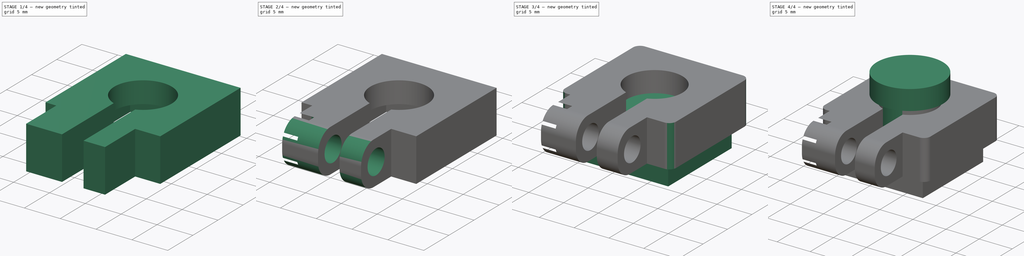
[diagram: build sequence overview — one tinted view per stage of 4, left to right]
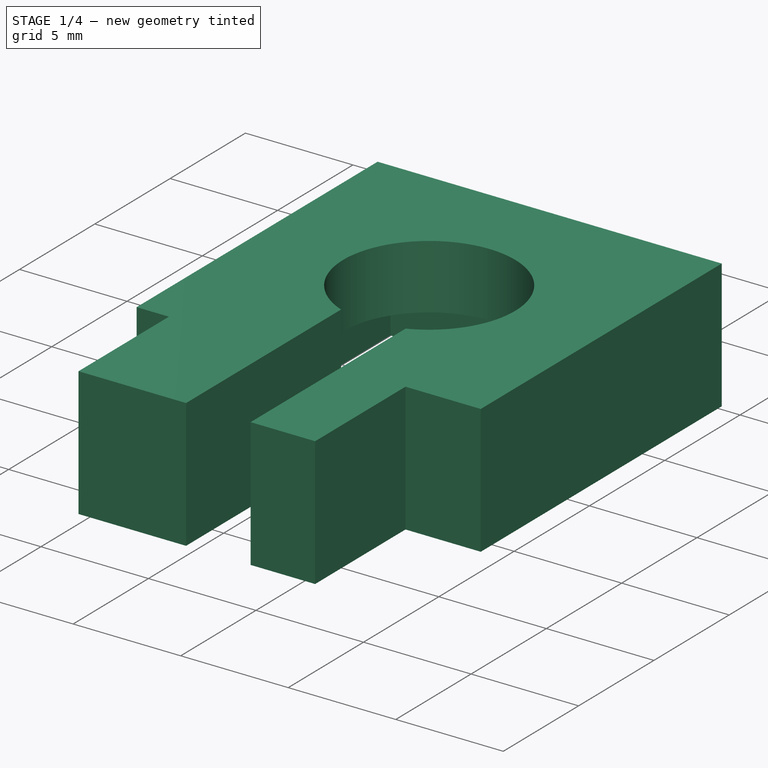
[diagram: stage 1 of 4 — iso view after this stage's code; geometry added in this stage tinted green]
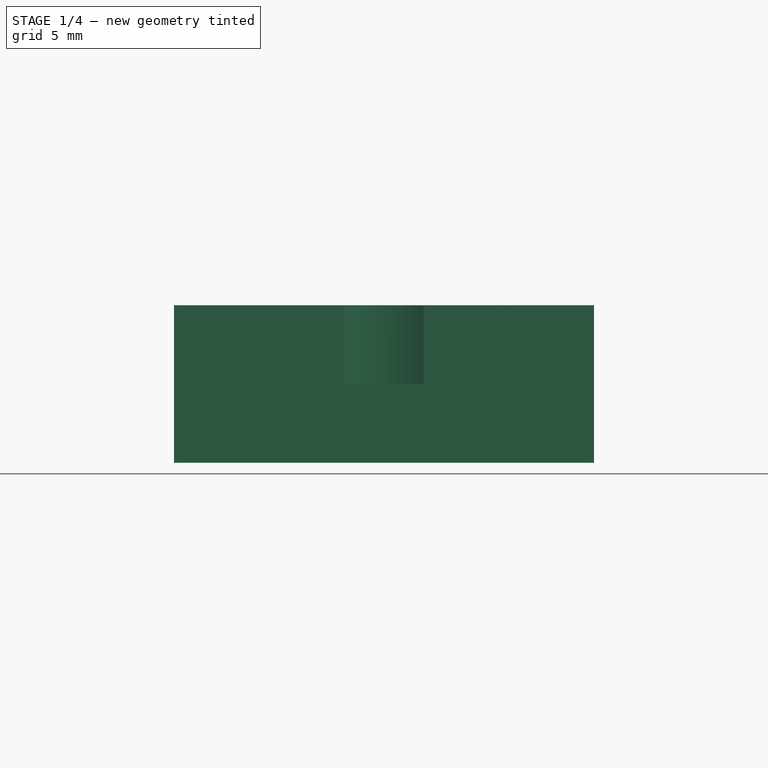
[diagram: stage 1 of 4 — front view after this stage's code; geometry added in this stage tinted green]
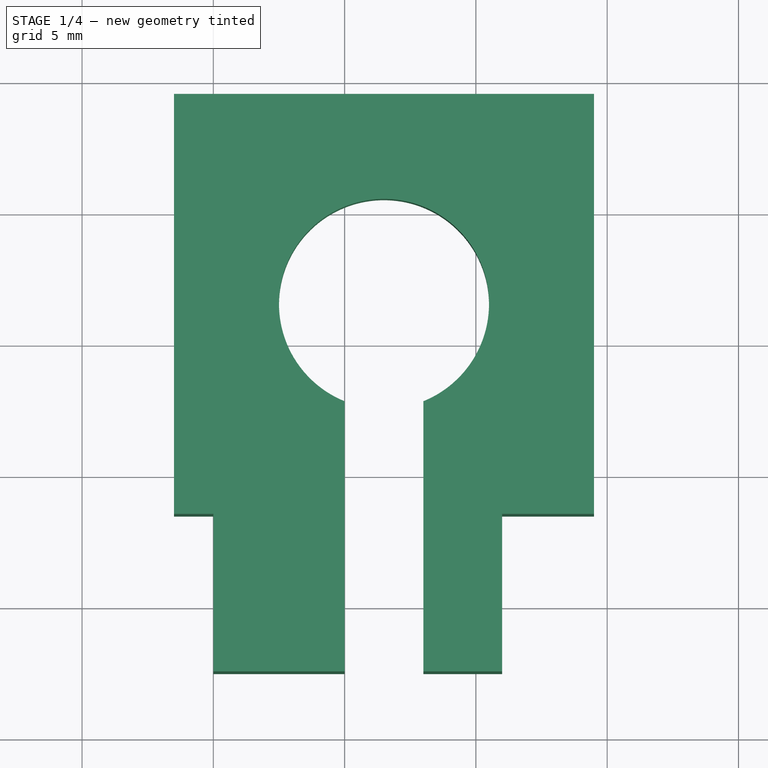
[diagram: stage 1 of 4 — top view after this stage's code; geometry added in this stage tinted green]
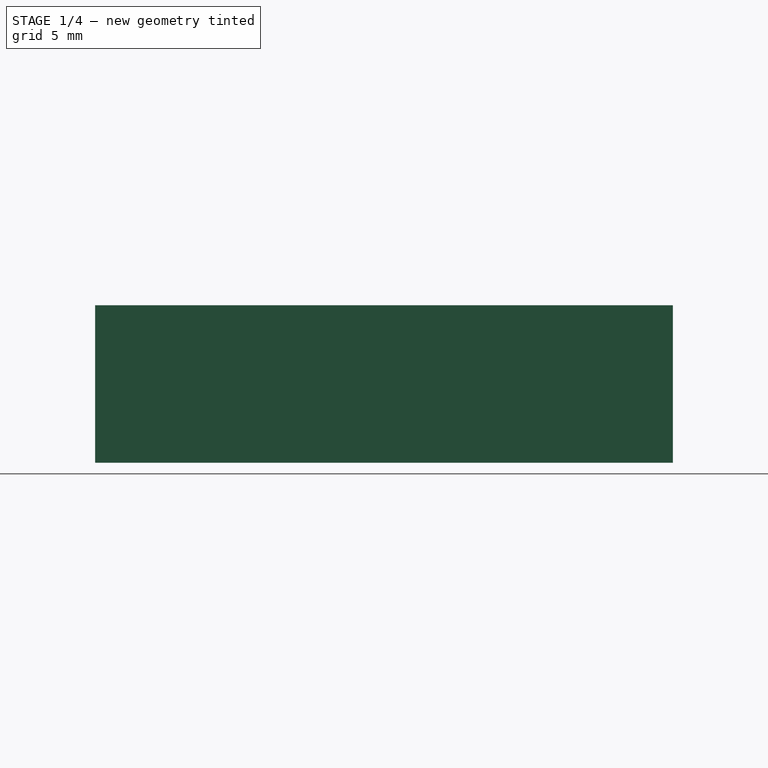
[diagram: stage 1 of 4 — right view after this stage's code; geometry added in this stage tinted green]
FCSTD DOCUMENT  (FreeCAD 0.16R6700 (Git))
Label: camera
License: All rights reserved
LicenseURL: http://en.wikipedia.org/wiki/All_rights_reserved
objects: Sketcher::SketchObject×7, PartDesign::Pad×5, PartDesign::Pocket×2, PartDesign::Fillet×2, Part::Box×1
note: 24 computed .brp shape members not serialized (recipe doc carries the construction recipe); baked Part::Feature solids carry a one-line shape summary decoded from their .brp

FEATURE [Sketcher::SketchObject] Sketch003
  Placement = pos=(0,0,3) rot=(0,0,1;0rad)
  sketch-geometry (19):
    g0: LineSegment StartX=0.5 StartY=12.5 StartZ=0 EndX=12.5 EndY=12.5 EndZ=0
    g1: LineSegment StartX=12.5 StartY=12.5 StartZ=0 EndX=12.5 EndY=0.5 EndZ=0
    g2: LineSegment StartX=12.5 StartY=0.5 StartZ=0 EndX=8 EndY=0.5 EndZ=0
    g3: LineSegment StartX=0.5 StartY=0.5 StartZ=0 EndX=0.5 EndY=12.5 EndZ=0
    g4: LineSegment StartX=-1.5 StartY=14.5 StartZ=0 EndX=14.5 EndY=14.5 EndZ=0
    g5: LineSegment StartX=14.5 StartY=14.5 StartZ=0 EndX=14.5 EndY=-1.5 EndZ=0
    g6: LineSegment StartX=14.5 StartY=-1.5 StartZ=0 EndX=11 EndY=-1.5 EndZ=0
    g7: LineSegment StartX=-1.5 StartY=-1.5 StartZ=0 EndX=-1.5 EndY=14.5 EndZ=0
    g8: LineSegment StartX=5 StartY=0.5 StartZ=0 EndX=5 EndY=-7.5 EndZ=0
    g9: LineSegment StartX=8 StartY=0.5 StartZ=0 EndX=8 EndY=-7.5 EndZ=0
    g10: LineSegment StartX=11 StartY=-7.5 StartZ=0 EndX=11 EndY=-1.5 EndZ=0
    g11: LineSegment StartX=0 StartY=-1.5 StartZ=0 EndX=0 EndY=-7.5 EndZ=0
    g12: LineSegment StartX=5 StartY=-7.5 StartZ=0 EndX=0 EndY=-7.5 EndZ=0
    g13: LineSegment StartX=8 StartY=-7.5 StartZ=0 EndX=11 EndY=-7.5 EndZ=0
    g14: LineSegment StartX=0 StartY=-1.5 StartZ=0 EndX=-1.5 EndY=-1.5 EndZ=0
    g15: LineSegment StartX=5 StartY=0.5 StartZ=0 EndX=0.5 EndY=0.5 EndZ=0
    g16: LineSegment [constr] StartX=5 StartY=0.5 StartZ=0 EndX=8 EndY=0.5 EndZ=0
    g17: LineSegment [constr] StartX=0 StartY=-1.5 StartZ=0 EndX=11 EndY=-1.5 EndZ=0
    g18: LineSegment [constr] StartX=5 StartY=-7.5 StartZ=0 EndX=8 EndY=-7.5 EndZ=0
  constraints (54):
    c: Coincident(g0,g1)
    c: Coincident(g1,g2)
    c: Coincident(g15,g3)
    c: Coincident(g3,g0)
    c: Horizontal(g0)
    c: Horizontal(g2)
    c: Vertical(g1)
    c: Vertical(g3)
    c: Coincident(g4,g5)
    c: Coincident(g5,g6)
    c: Coincident(g14,g7)
    c: Coincident(g7,g4)
    c: Horizontal(g4)
    c: Horizontal(g6)
    c: Vertical(g5)
    c: Vertical(g7)
    c: Vertical(g8)
    c: Vertical(g9)
    c: Vertical(g10)
    c: Vertical(g11)
    c: Coincident(g12,g11)
    c: Horizontal(g12)
    c: Coincident(g13,g10)
    c: Horizontal(g13)
    c: Coincident(g9,g13)
    c: Coincident(g8,g12)
    c: Coincident(g14,g11)
    c: Tangent(g6,g14)
    c: Coincident(g6,g10)
    c: Coincident(g2,g9)
    c: Coincident(g15,g8)
    c: Coincident(g16,g8)
    c: Coincident(g16,g2)
    c: Horizontal(g16)
    c: Coincident(g17,g6)
    c: Horizontal(g17)
    c: Coincident(g11,g17)
    c: Coincident(g9,g18)
    c: Horizontal(g18)
    c: DistanceX(g12,g12) = 5
    c: Distance(g13) = 3
    c: Coincident(g8,g18)
    c: DistanceX(g18,g18) = 3
    c: DistanceY(g-1,g3) = 0.5
    c: DistanceX(g-1,g3) = 0.5
    c: Distance(g0) = 12
    c: DistanceY(g1,g1) = 12
    c: Horizontal(g15)
    c: DistanceY(g0,g4) = 2
    c: DistanceX(g4,g0) = 2
    c: DistanceX(g0,g4) = 2
    c: DistanceY(g5,g1) = 2
    c: DistanceX(g3,g8) = 4.5
    c: DistanceY(g11,g11) = 6
FEATURE [PartDesign::Pad] Pad003
  Length = 6
  Length2 = 100
  Placement = pos=(0,0,3) rot=(0,0,1;0rad)
  Sketch = -> Sketch003
  Type = 0
FEATURE [Sketcher::SketchObject] Sketch004
  ExternalGeometry = -> [Pad003]
  Placement = pos=(0,0,9) rot=(0,0,1;0rad)
  Support = -> Pad003 [Face18]
  sketch-geometry (8):
    g0: ArcOfCircle CenterX=6.5 CenterY=6.5 CenterZ=0 NormalX=0 NormalY=0 NormalZ=1 Radius=4 StartAngle=5.09679 EndAngle=10.6112
    g1: LineSegment StartX=0.5 StartY=12.5 StartZ=0 EndX=12.5 EndY=12.5 EndZ=0
    g2: LineSegment StartX=12.5 StartY=12.5 StartZ=0 EndX=12.5 EndY=0.5 EndZ=0
    g3: LineSegment StartX=12.5 StartY=0.5 StartZ=0 EndX=8 EndY=0.5 EndZ=0
    g4: LineSegment StartX=0.5 StartY=0.5 StartZ=0 EndX=0.5 EndY=12.5 EndZ=0
    g5: LineSegment StartX=5 StartY=0.5 StartZ=0 EndX=5 EndY=2.7919 EndZ=0
    g6: LineSegment StartX=8 StartY=0.5 StartZ=0 EndX=8 EndY=2.7919 EndZ=0
    g7: LineSegment StartX=5 StartY=0.5 StartZ=0 EndX=0.5 EndY=0.5 EndZ=0
  constraints (22):
    c: Radius(g0) = 4
    c: DistanceY(g-1,g0) = 6.5
    c: DistanceX(g-1,g0) = 6.5
    c: Coincident(g1,g2)
    c: Coincident(g2,g3)
    c: Coincident(g7,g4)
    c: Coincident(g4,g1)
    c: Horizontal(g1)
    c: Horizontal(g3)
    c: Vertical(g2)
    c: Vertical(g4)
    c: Coincident(g1,g-4)
    c: Coincident(g2,g-5)
    c: Vertical(g5)
    c: Vertical(g6)
    c: Coincident(g0,g6)
    c: Coincident(g0,g5)
    c: Coincident(g3,g6)
    c: Coincident(g7,g5)
    c: Tangent(g3,g7)
    c: DistanceX(g-1,g5) = 5
    c: DistanceX(g5,g3) = 3
FEATURE [PartDesign::Pad] Pad004
  Length = 3
  Length2 = 100
  Placement = pos=(0,0,3) rot=(0,0,1;0rad)
  Reversed = true
  Sketch = -> Sketch004
  Type = 0
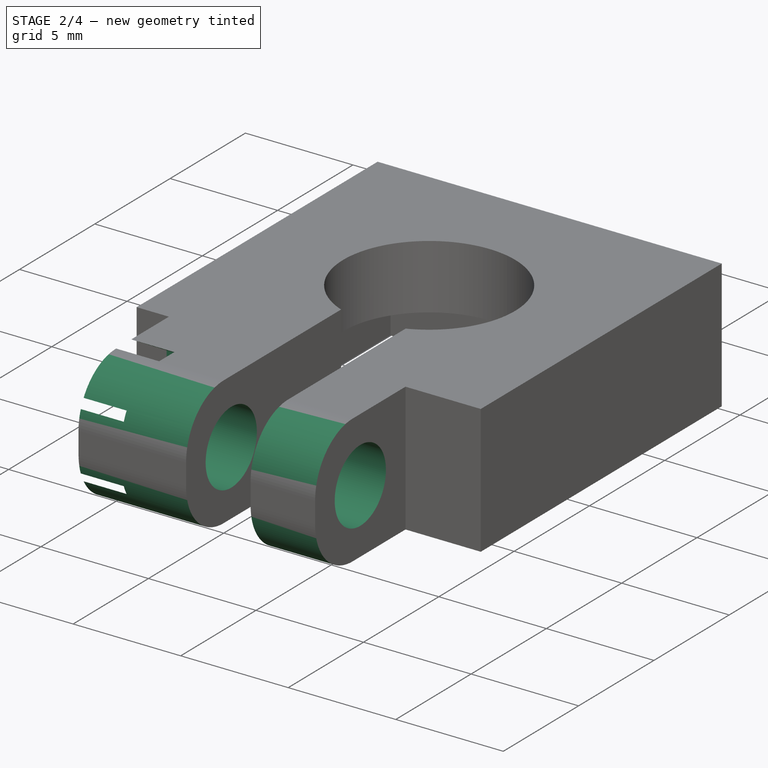
[diagram: stage 2 of 4 — iso view after this stage's code; geometry added in this stage tinted green]
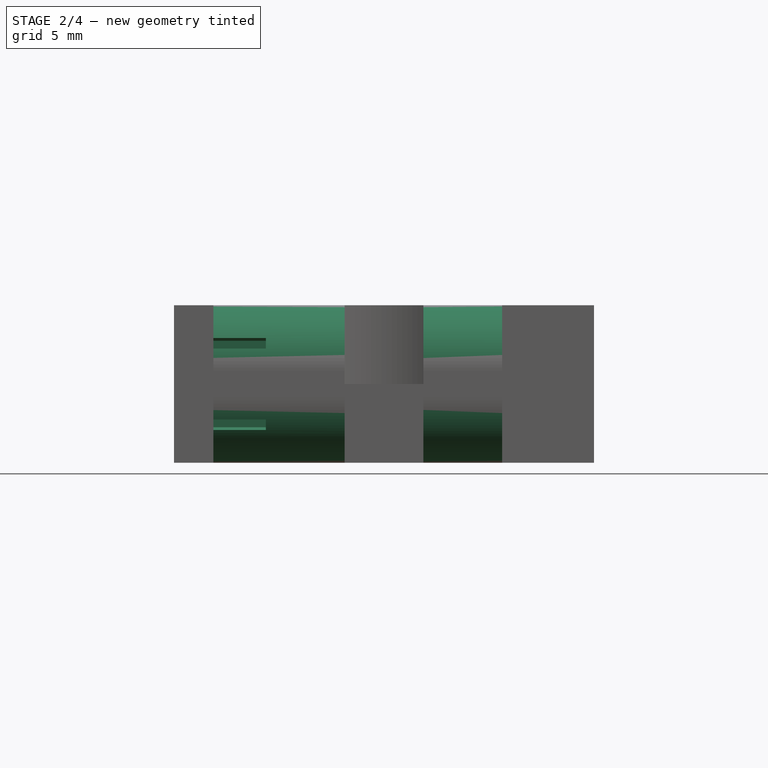
[diagram: stage 2 of 4 — front view after this stage's code; geometry added in this stage tinted green]
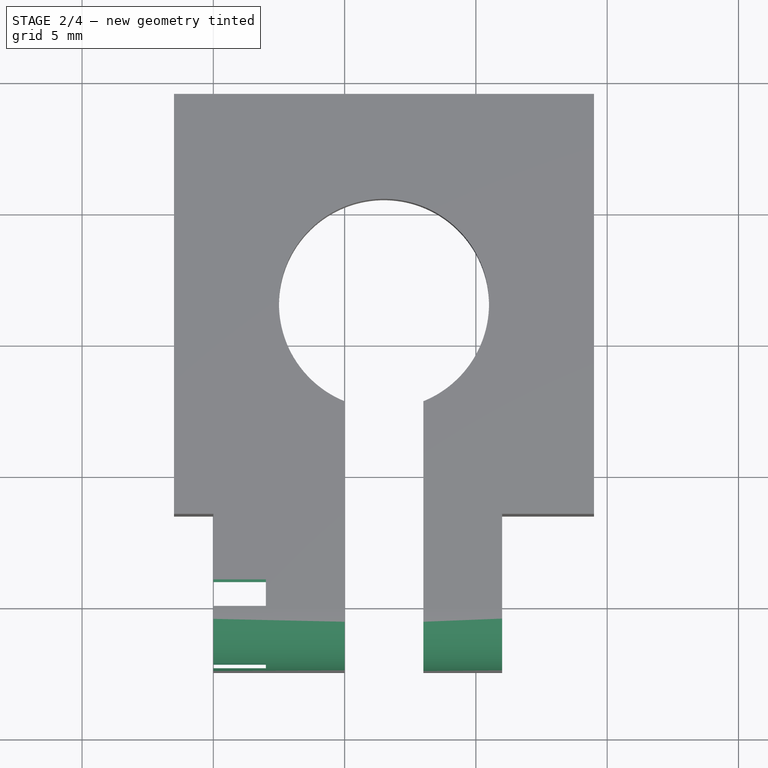
[diagram: stage 2 of 4 — top view after this stage's code; geometry added in this stage tinted green]
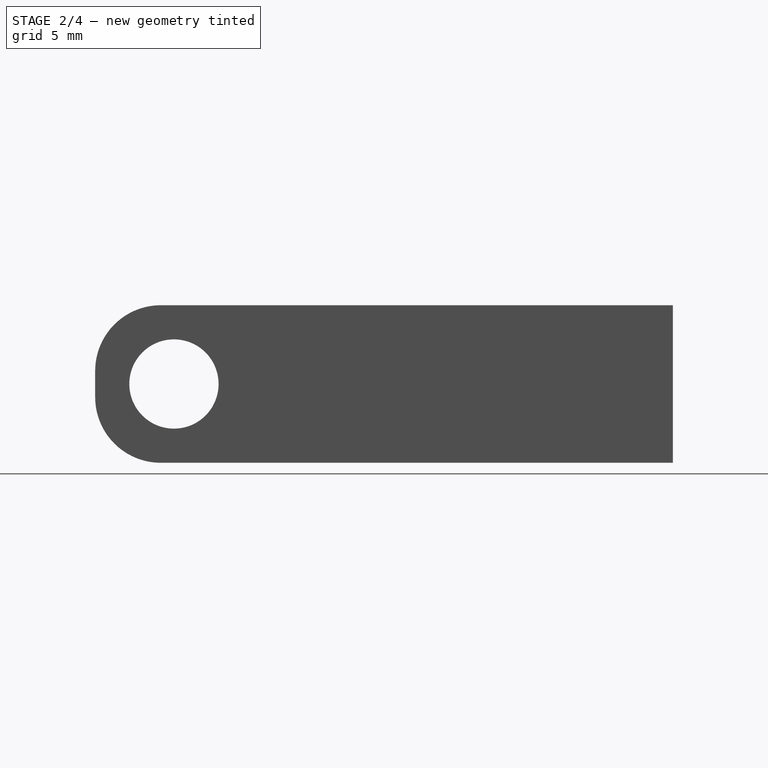
[diagram: stage 2 of 4 — right view after this stage's code; geometry added in this stage tinted green]
FEATURE [Sketcher::SketchObject] Sketch005
  ExternalGeometry = -> [Pad004]
  Placement = pos=(11,0,3) rot=(0.57735,0.57735,0.57735;2.0944rad)
  Support = -> Pad004 [Face9]
  sketch-geometry (1):
    g0: Circle CenterX=-4.5 CenterY=3 CenterZ=0 NormalX=0 NormalY=0 NormalZ=1 Radius=1.7
  constraints (3):
    c: Radius(g0) = 1.7
    c: DistanceY(g0,g-3) = 3
    c: DistanceX(g-3,g0) = 3
FEATURE [PartDesign::Pocket] Pocket
  Length = 15
  Placement = pos=(0,0,3) rot=(0,0,1;0rad)
  Sketch = -> Sketch005
  Type = 0
FEATURE [PartDesign::Fillet] Fillet
  Base = -> Pocket [Edge51,Edge15,Edge7,Edge33]
  Placement = pos=(0,0,3) rot=(0,0,1;0rad)
  Radius = 2.5
FEATURE [Sketcher::SketchObject] Sketch006
  ExternalGeometry = -> [Pocket]
  Placement = pos=(0,0,3) rot=(0.57735,-0.57735,-0.57735;2.0944rad)
  Support = -> Fillet [Face17]
  sketch-geometry (7):
    g0: LineSegment StartX=7.35 StartY=4.64545 StartZ=0 EndX=4.5 EndY=6.2909 EndZ=0
    g1: LineSegment StartX=4.5 StartY=6.2909 StartZ=0 EndX=1.65 EndY=4.64545 EndZ=0
    g2: LineSegment StartX=1.65 StartY=4.64545 StartZ=0 EndX=1.65 EndY=1.35455 EndZ=0
    g3: LineSegment StartX=1.65 StartY=1.35455 StartZ=0 EndX=4.5 EndY=-0.290897 EndZ=0
    g4: LineSegment StartX=4.5 StartY=-0.290897 StartZ=0 EndX=7.35 EndY=1.35455 EndZ=0
    g5: LineSegment StartX=7.35 StartY=1.35455 StartZ=0 EndX=7.35 EndY=4.64545 EndZ=0
    g6: Circle [constr] CenterX=4.5 CenterY=3 CenterZ=0 NormalX=0 NormalY=0 NormalZ=1 Radius=3.2909
  constraints (16):
    c: Coincident(g0,g1)
    c: Coincident(g1,g2)
    c: Coincident(g2,g3)
    c: Coincident(g3,g4)
    c: Coincident(g4,g5)
    c: Coincident(g5,g0)
    c: Equal(g0, g1-g5) x5
    c: PointOnObject(g0,g6)
    c: PointOnObject(g1,g6)
    c: PointOnObject(g2,g6)
    c: PointOnObject(g3,g6)
    c: PointOnObject(g4,g6)
    c: PointOnObject(g5,g6)
    c: Vertical(g5)
    c: DistanceX(g1,g0) = 5.7
    c: Coincident(g6,g-3)
FEATURE [PartDesign::Pocket] Pocket001
  Length = 2
  Placement = pos=(0,0,3) rot=(0,0,1;0rad)
  Sketch = -> Sketch006
  Type = 0
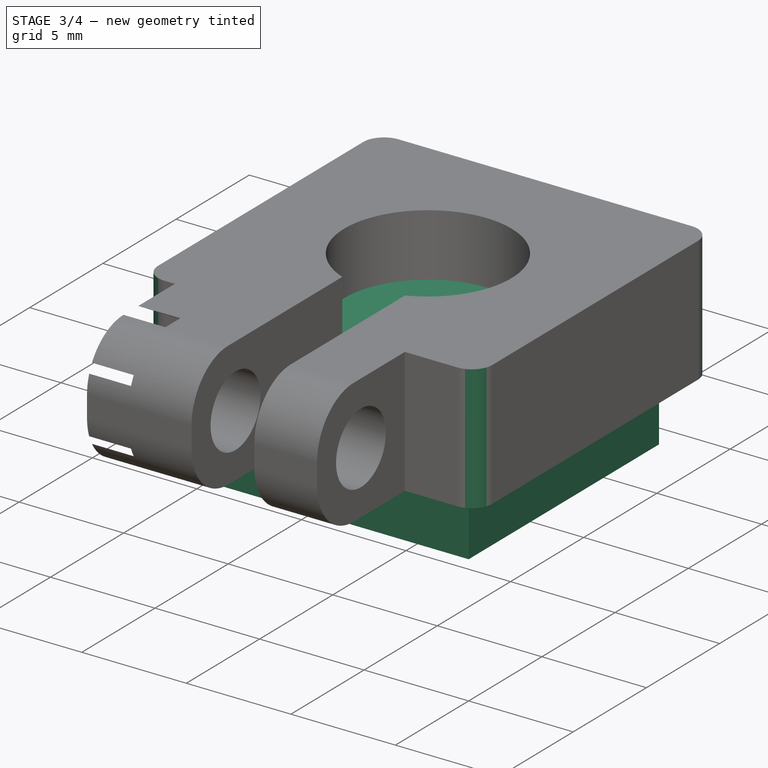
[diagram: stage 3 of 4 — iso view after this stage's code; geometry added in this stage tinted green]
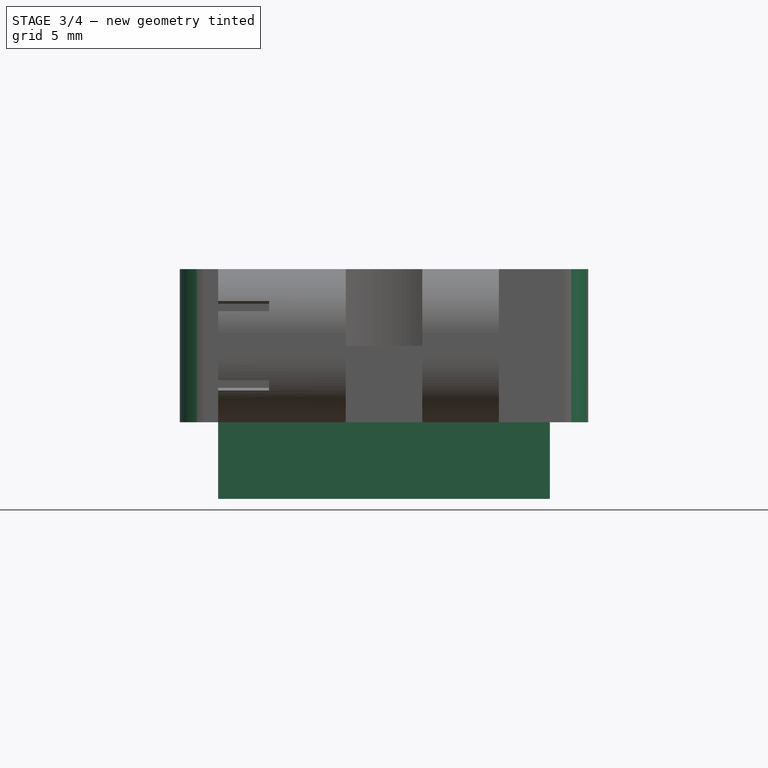
[diagram: stage 3 of 4 — front view after this stage's code; geometry added in this stage tinted green]
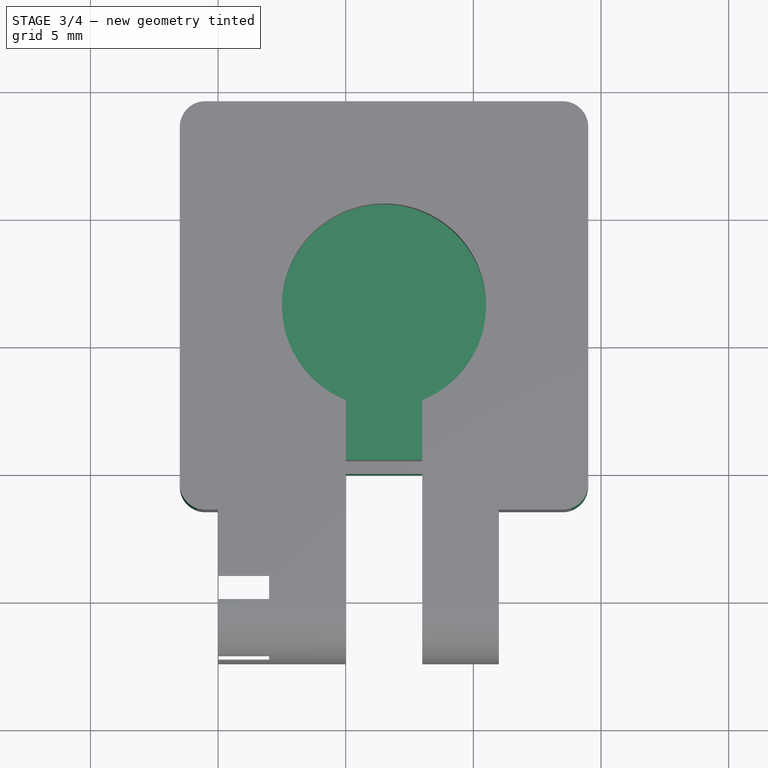
[diagram: stage 3 of 4 — top view after this stage's code; geometry added in this stage tinted green]
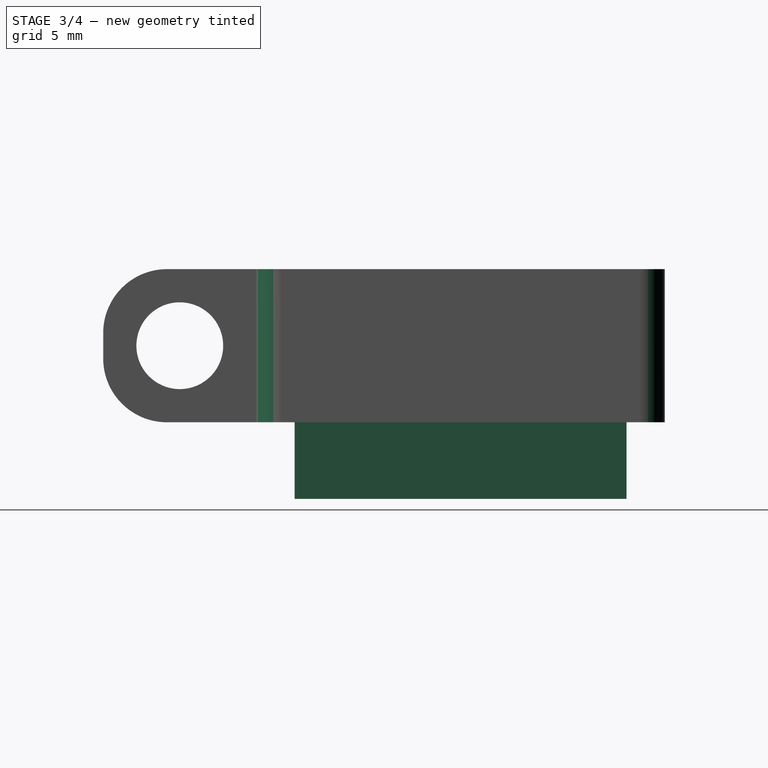
[diagram: stage 3 of 4 — right view after this stage's code; geometry added in this stage tinted green]
FEATURE [Part::Box] Box  label="Cube"
  Height = 3
  Length = 13
  Width = 13
FEATURE [Sketcher::SketchObject] Sketch
  Placement = pos=(0,0,3) rot=(0,0,1;0rad)
  Support = -> Box [Face6]
  sketch-geometry (4):
    g0: LineSegment StartX=0.5 StartY=12.5 StartZ=0 EndX=12.5 EndY=12.5 EndZ=0
    g1: LineSegment StartX=12.5 StartY=12.5 StartZ=0 EndX=12.5 EndY=0.5 EndZ=0
    g2: LineSegment StartX=12.5 StartY=0.5 StartZ=0 EndX=0.5 EndY=0.5 EndZ=0
    g3: LineSegment StartX=0.5 StartY=0.5 StartZ=0 EndX=0.5 EndY=12.5 EndZ=0
  constraints (12):
    c: Coincident(g0,g1)
    c: Coincident(g1,g2)
    c: Coincident(g2,g3)
    c: Coincident(g3,g0)
    c: Horizontal(g0)
    c: Horizontal(g2)
    c: Vertical(g1)
    c: Vertical(g3)
    c: Distance(g3) = 12
    c: Distance(g2) = 12
    c: DistanceY(g-1,g2) = 0.5
    c: DistanceX(g-1,g2) = 0.5
FEATURE [PartDesign::Pad] Pad
  Length = 3
  Length2 = 100
  Sketch = -> Sketch
  Type = 0
FEATURE [PartDesign::Fillet] Fillet001  label="cam_holder"
  Base = -> Pocket001 [Edge68,Edge72,Edge70,Edge66]
  Placement = pos=(0,0,3) rot=(0,0,1;0rad)
  Radius = 1
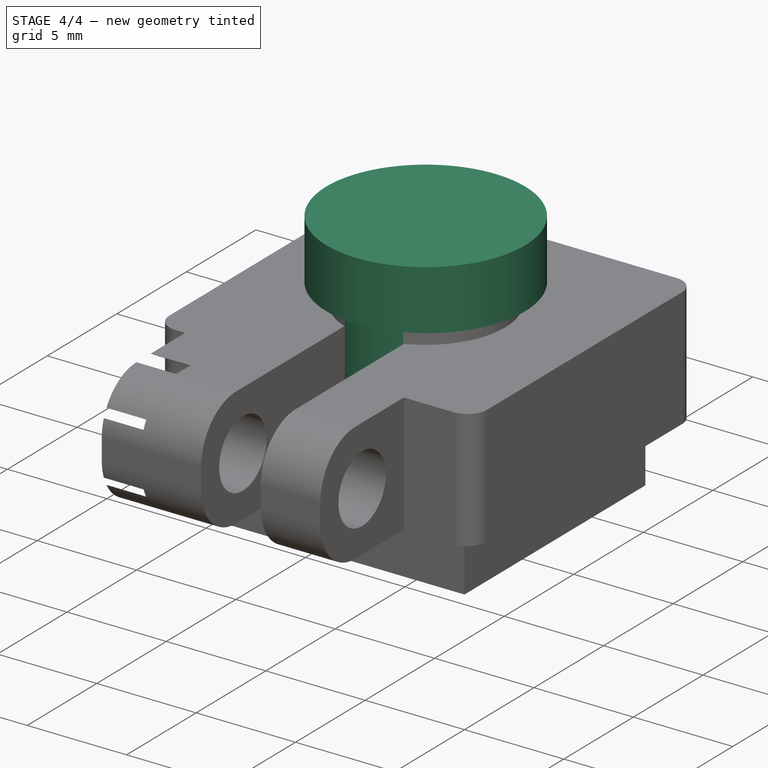
[diagram: stage 4 of 4 — iso view after this stage's code; geometry added in this stage tinted green]
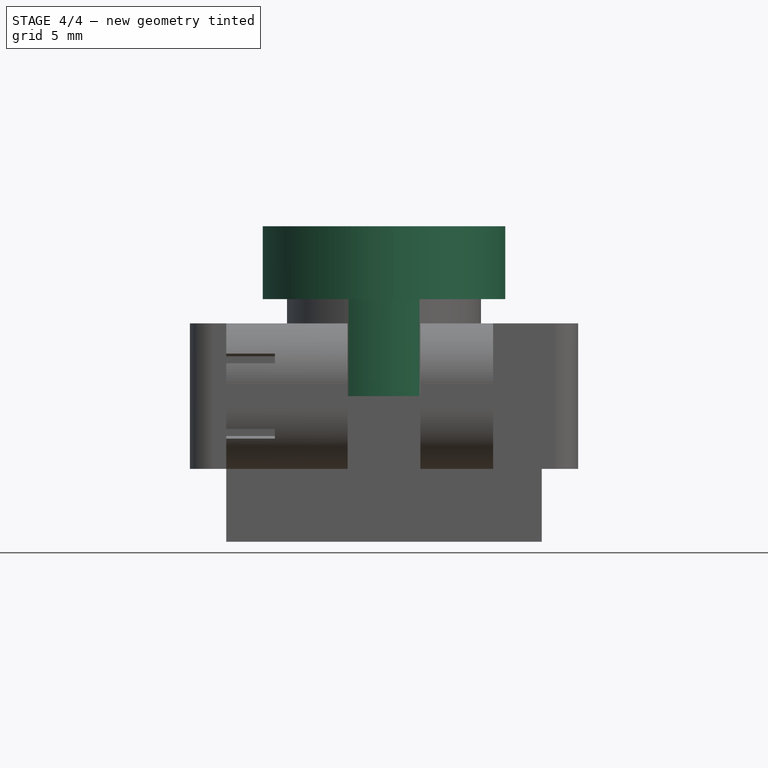
[diagram: stage 4 of 4 — front view after this stage's code; geometry added in this stage tinted green]
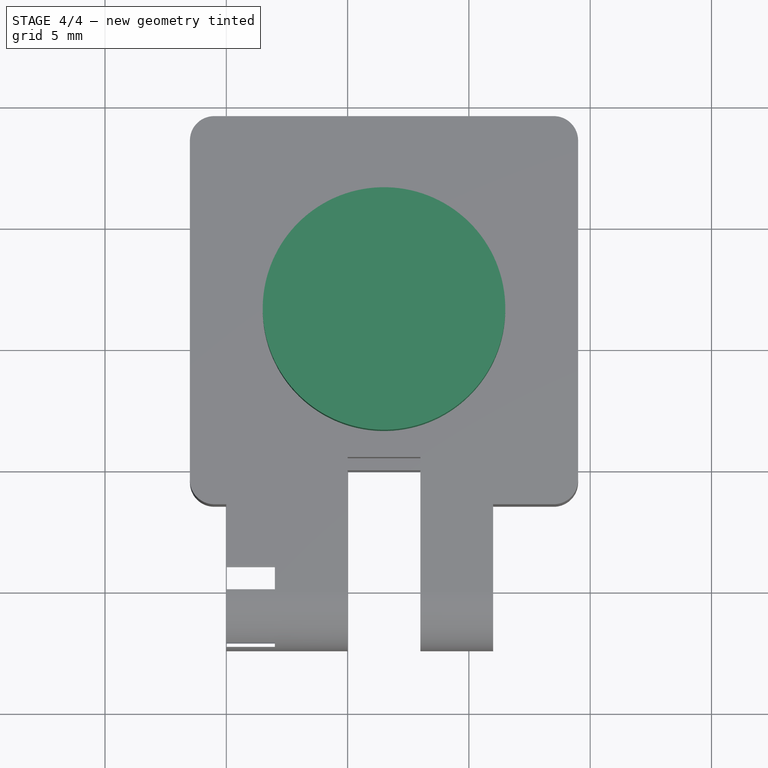
[diagram: stage 4 of 4 — top view after this stage's code; geometry added in this stage tinted green]
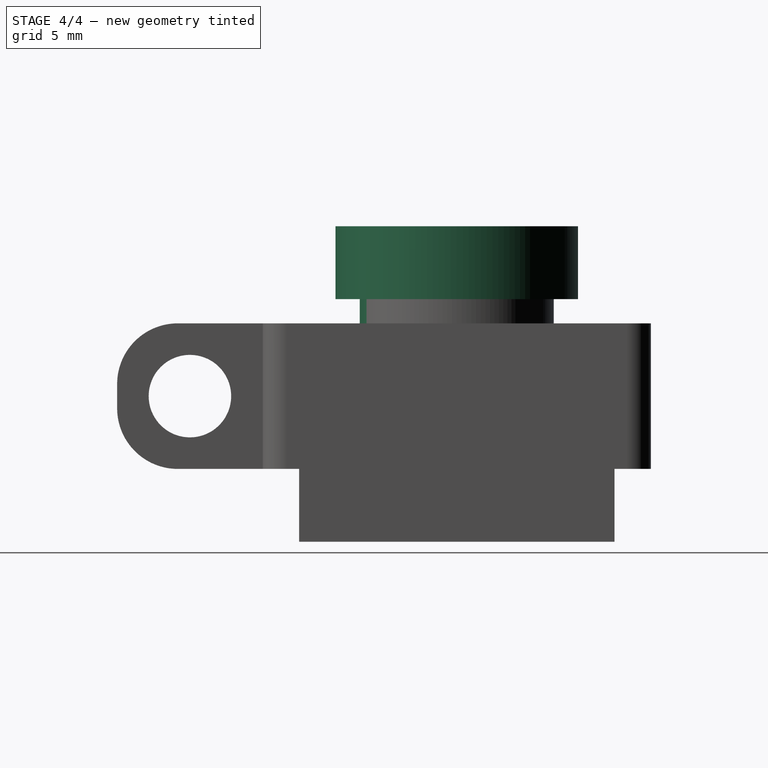
[diagram: stage 4 of 4 — right view after this stage's code; geometry added in this stage tinted green]
FEATURE [Sketcher::SketchObject] Sketch001
  Placement = pos=(0,0,6) rot=(0,0,1;0rad)
  Support = -> Pad [Face11]
  sketch-geometry (1):
    g0: Circle CenterX=6.5 CenterY=6.5 CenterZ=0 NormalX=0 NormalY=0 NormalZ=1 Radius=4
  constraints (3):
    c: Radius(g0) = 4
    c: DistanceX(g-1,g0) = 6.5
    c: DistanceY(g-1,g0) = 6.5
FEATURE [PartDesign::Pad] Pad001
  Length = 4
  Length2 = 100
  Sketch = -> Sketch001
  Type = 0
FEATURE [Sketcher::SketchObject] Sketch002
  Placement = pos=(0,0,10) rot=(0,0,1;0rad)
  Support = -> Pad001 [Face13]
  sketch-geometry (1):
    g0: Circle CenterX=6.5 CenterY=6.5 CenterZ=0 NormalX=0 NormalY=0 NormalZ=1 Radius=5
  constraints (3):
    c: DistanceY(g-1,g0) = 6.5
    c: DistanceX(g-1,g0) = 6.5
    c: Radius(g0) = 5
FEATURE [PartDesign::Pad] Pad002  label="camera"
  Length = 3
  Length2 = 100
  Sketch = -> Sketch002
  Type = 0
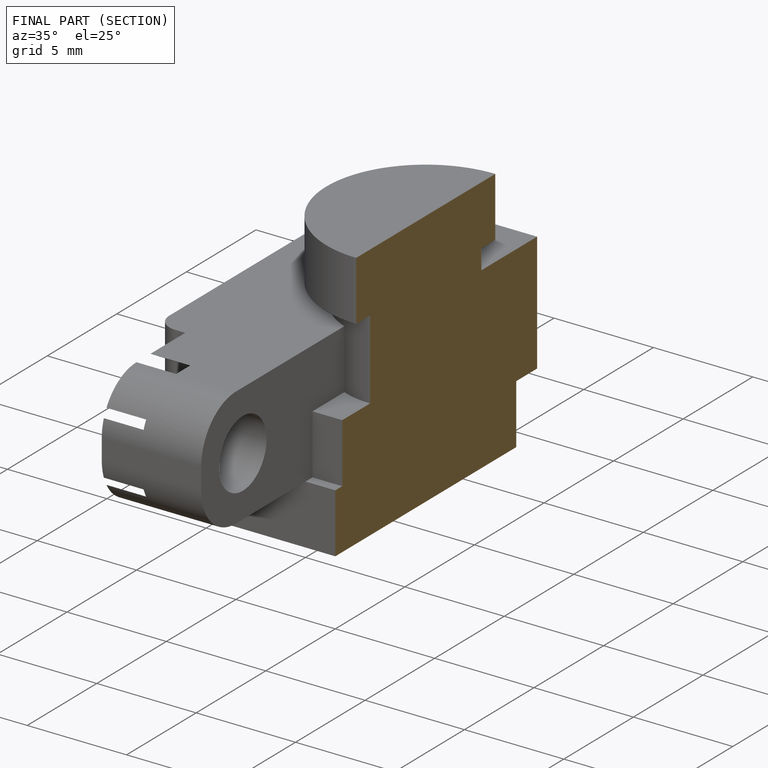
[diagram: finished part — half-section view (interior)]
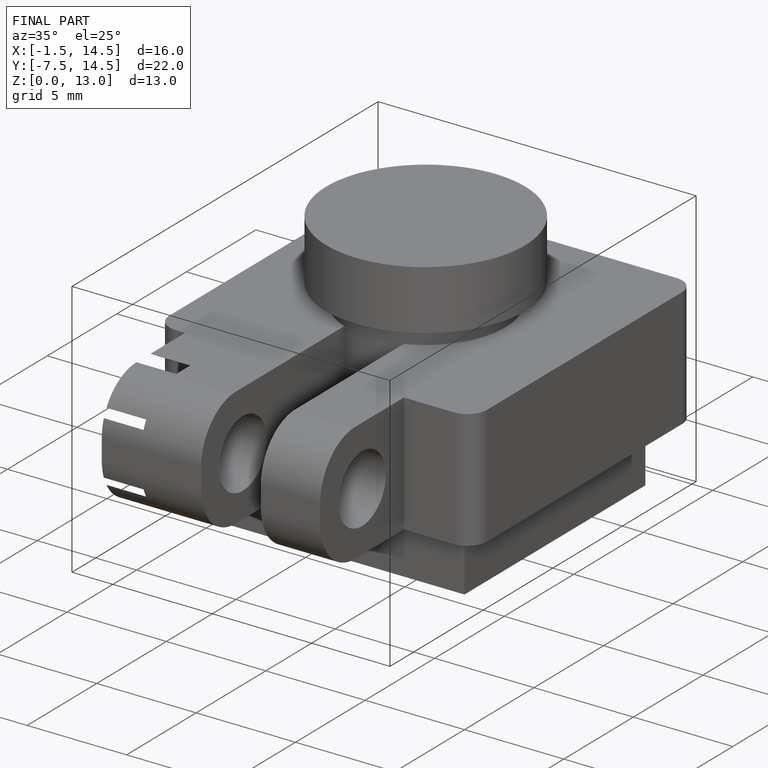
[diagram: finished part — iso view with bounding-box wireframe]
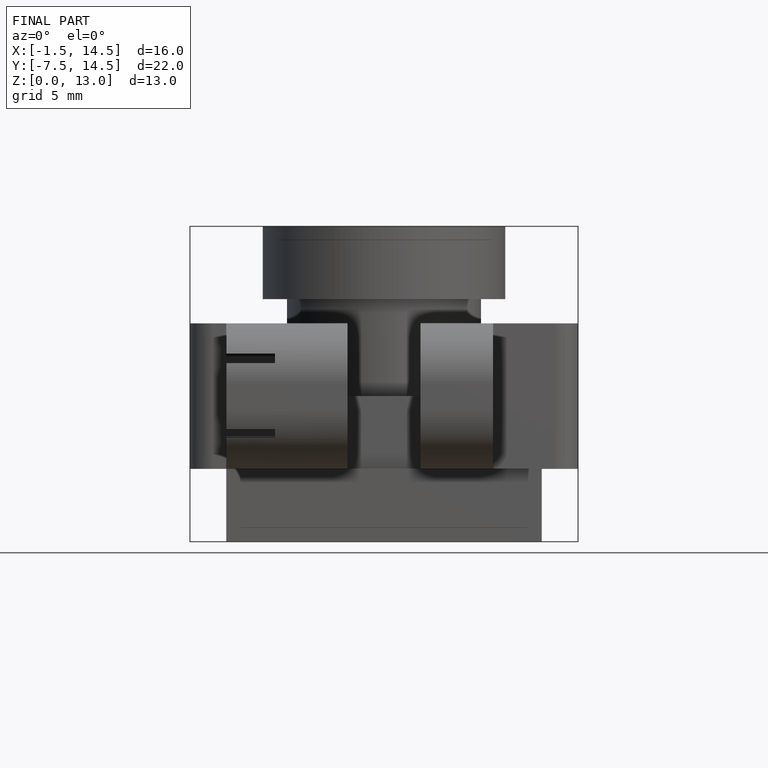
[diagram: finished part — front view with bounding-box wireframe]
